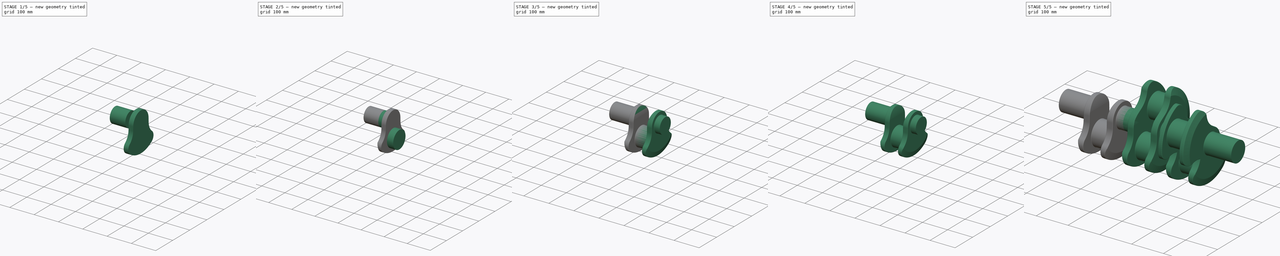
[diagram: build sequence overview — one tinted view per stage of 5, left to right]
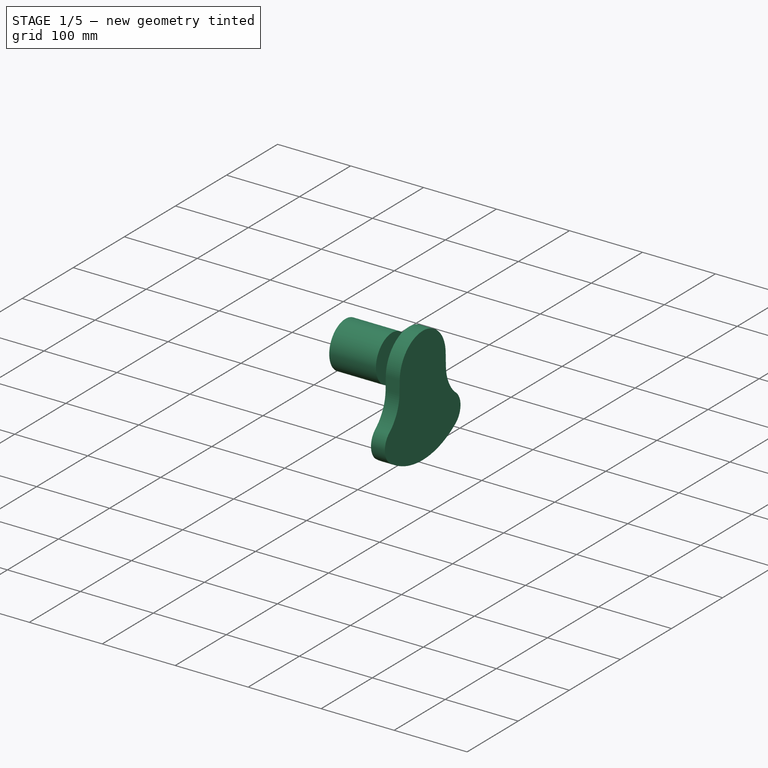
[diagram: stage 1 of 5 — iso view after this stage's code; geometry added in this stage tinted green]
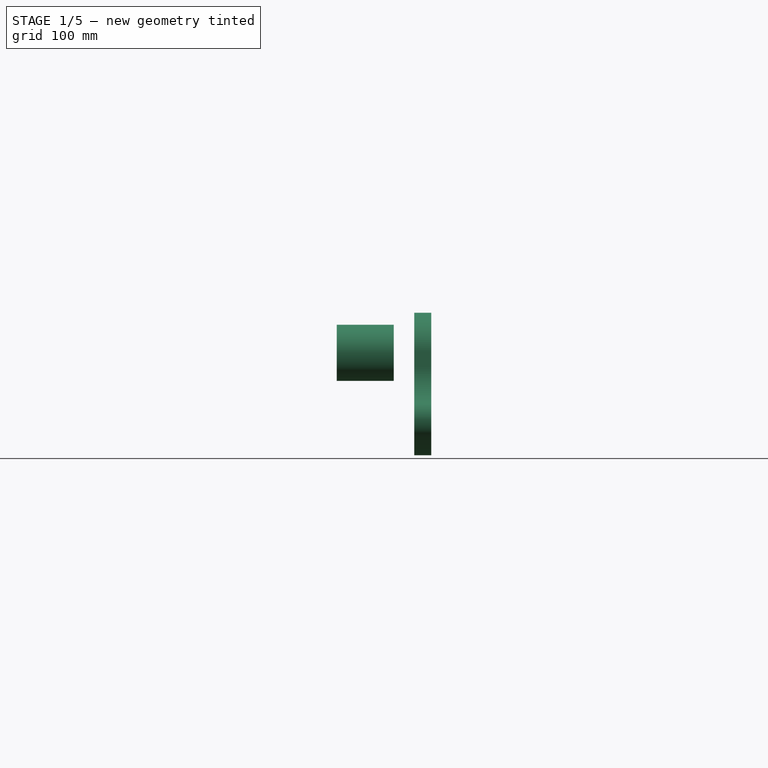
[diagram: stage 1 of 5 — front view after this stage's code; geometry added in this stage tinted green]
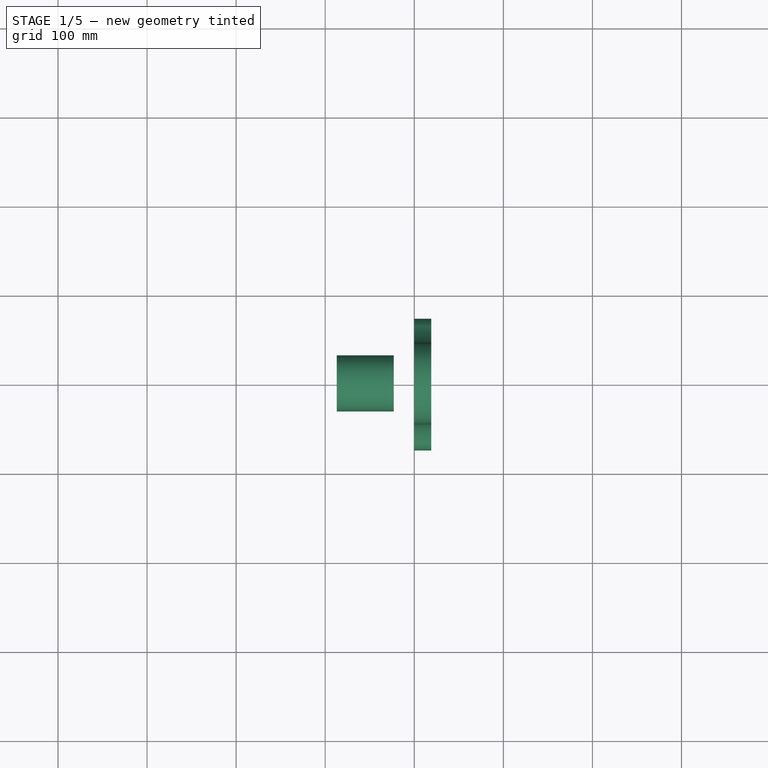
[diagram: stage 1 of 5 — top view after this stage's code; geometry added in this stage tinted green]
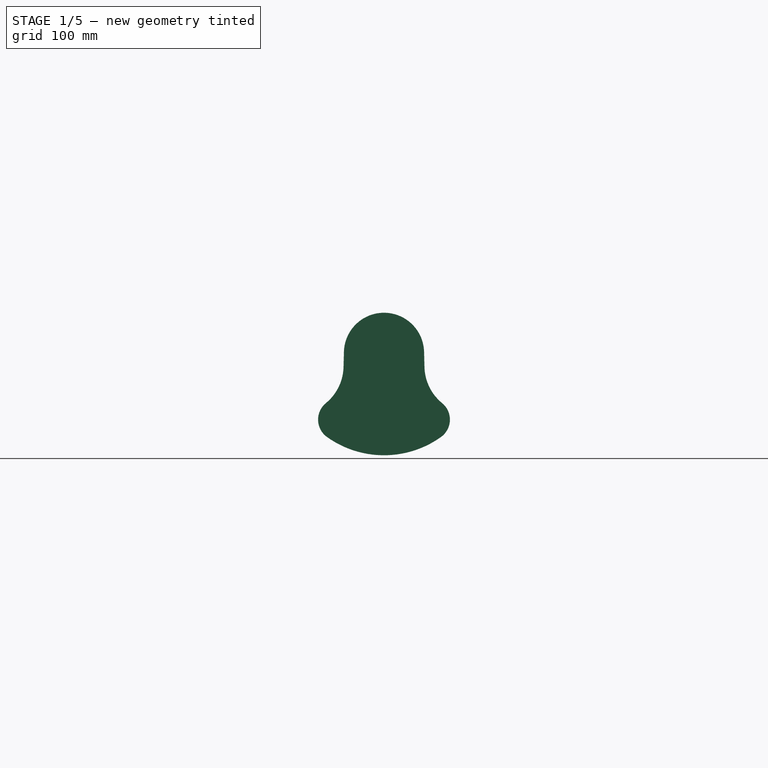
[diagram: stage 1 of 5 — right view after this stage's code; geometry added in this stage tinted green]
FCSTD DOCUMENT  (FreeCAD 0.18.4R)
Label: CrankShaft
License: All rights reserved
LicenseURL: http://en.wikipedia.org/wiki/All_rights_reserved
objects: PartDesign::Body×7, Sketcher::SketchObject×6, PartDesign::FeatureBase×5, PartDesign::Pad×4, PartDesign::Fillet×2, PartDesign::Line×1, PartDesign::Groove×1, PartDesign::Pocket×1, PartDesign::Mirrored×1, Part::FeaturePython×1, Part::MultiFuse×1, App::Part×1
note: 36 computed .brp shape members not serialized (recipe doc carries the construction recipe); baked Part::Feature solids carry a one-line shape summary decoded from their .brp

FEATURE [Sketcher::SketchObject] Sketch
  MapMode = 5
  Placement = pos=(0,0,0) rot=(0.57735,0.57735,0.57735;2.0944rad)
  Support = -> [YZ_Plane001]
  sketch-geometry (9):
    g0: LineSegment StartX=-44.9852 StartY=1.15415 StartZ=0 EndX=-45.4253 EndY=-16 EndZ=0
    g1: LineSegment StartX=44.9852 StartY=1.15415 StartZ=0 EndX=45.4253 EndY=-16 EndZ=0
    g2: ArcOfCircle CenterX=0 CenterY=0 CenterZ=0 NormalX=0 NormalY=0 NormalZ=1 AngleXU=0 Radius=45 StartAngle=0.0256505 EndAngle=3.11594
    g3: ArcOfCircle CenterX=-99.4075 CenterY=-14.615 CenterZ=0 NormalX=0 NormalY=0 NormalZ=1 AngleXU=0 Radius=54 StartAngle=5.39837 EndAngle=6.25753
    g4: ArcOfCircle CenterX=-50 CenterY=-74.9714 CenterZ=0 NormalX=0 NormalY=0 NormalZ=1 AngleXU=0 Radius=24 StartAngle=2.25677 EndAngle=4.09195
    g5: ArcOfCircle CenterX=0 CenterY=-5 CenterZ=0 NormalX=0 NormalY=0 NormalZ=1 AngleXU=0 Radius=110 StartAngle=4.09195 EndAngle=5.33283
    g6: ArcOfCircle CenterX=50 CenterY=-74.9714 CenterZ=0 NormalX=0 NormalY=0 NormalZ=1 AngleXU=0 Radius=24 StartAngle=5.33283 EndAngle=7.168
    g7: ArcOfCircle CenterX=99.4075 CenterY=-14.615 CenterZ=0 NormalX=0 NormalY=0 NormalZ=1 AngleXU=0 Radius=54 StartAngle=3.16724 EndAngle=4.02641
    g8: Circle [constr] CenterX=0 CenterY=-63 CenterZ=0 NormalX=0 NormalY=0 NormalZ=1 AngleXU=0 Radius=38
  constraints (24):
    c: Coincident(g2,g-1)
    c: Tangent(g2,g1) = 1.5708
    c: Tangent(g2,g0) = -1.5708
    c: Symmetric(g0,g1,g-2)
    c: Radius(g2) = 45
    c: PointOnObject(g5,g-2)
    c: Tangent(g7,g1) = -1.5708
    c: Tangent(g7,g6) = 1.5708
    c: Tangent(g6,g5) = -1.5708
    c: Tangent(g5,g4) = -1.5708
    c: Tangent(g4,g3) = 1.5708
    c: Tangent(g3,g0) = 1.5708
    c: Equal(g4,g6)
    c: Equal(g7,g3)
    c: PointOnObject(g8,g-2)
    c: Radius(g8) = 38
    c: DistanceY(g8,g2) = 63
    c: Equal(g1,g0)
    c: DistanceY(g5,g2) = 5
    c: Radius(g5) = 110
    c: Radius(g6) = 24
    c: Radius(g7) = 54
    c: DistanceY(g1,g2) = 16
    c: DistanceX(g4,g6) = 100
FEATURE [PartDesign::Pad] Pad
  Length = 19
  Length2 = 100
  Placement = pos=(0,0,0) rot=(0.57735,0.57735,0.57735;2.0944rad)
  Profile = -> Sketch
  Refine = true
  Type = 0
FEATURE [PartDesign::Body] Body004
  Group = -> [Clone003]
  Origin = -> Origin005
  Placement = pos=(276,0,0) rot=(1,0,0;4.18879rad)
  Tip = -> Clone003
FEATURE [Sketcher::SketchObject] Sketch005
  MapMode = 5
  Placement = pos=(0,0,0) rot=(0.57735,0.57735,0.57735;2.0944rad)
  Support = -> [YZ_Plane006]
  sketch-geometry (1):
    g0: Circle CenterX=0 CenterY=0 CenterZ=0 NormalX=0 NormalY=0 NormalZ=1 AngleXU=0 Radius=31.5
  constraints (2):
    c: Coincident(g0,g-1)
    c: Radius(g0) = 31.5
FEATURE [PartDesign::Pad] Pad003
  Length = 64
  Length2 = 100
  Placement = pos=(0,0,0) rot=(0.57735,0.57735,0.57735;2.0944rad)
  Profile = -> Sketch005
  Refine = true
  Reversed = true
  Type = 0
FEATURE [PartDesign::Body] Body005
  Group = -> [Sketch005,Pad003]
  Origin = -> Origin006
  Placement = pos=(-23,0,0) rot=(0,0,1;0rad)
  Tip = -> Pad003
FEATURE [PartDesign::FeatureBase] Clone004
  BaseFeature = -> Body005
  Placement = pos=(-23,0,0) rot=(0,0,1;0rad)
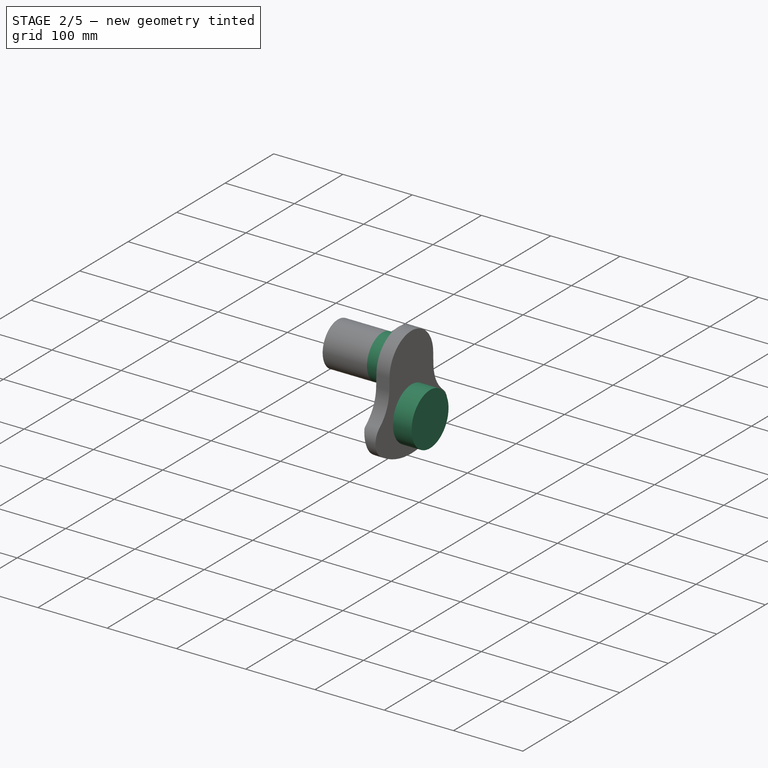
[diagram: stage 2 of 5 — iso view after this stage's code; geometry added in this stage tinted green]
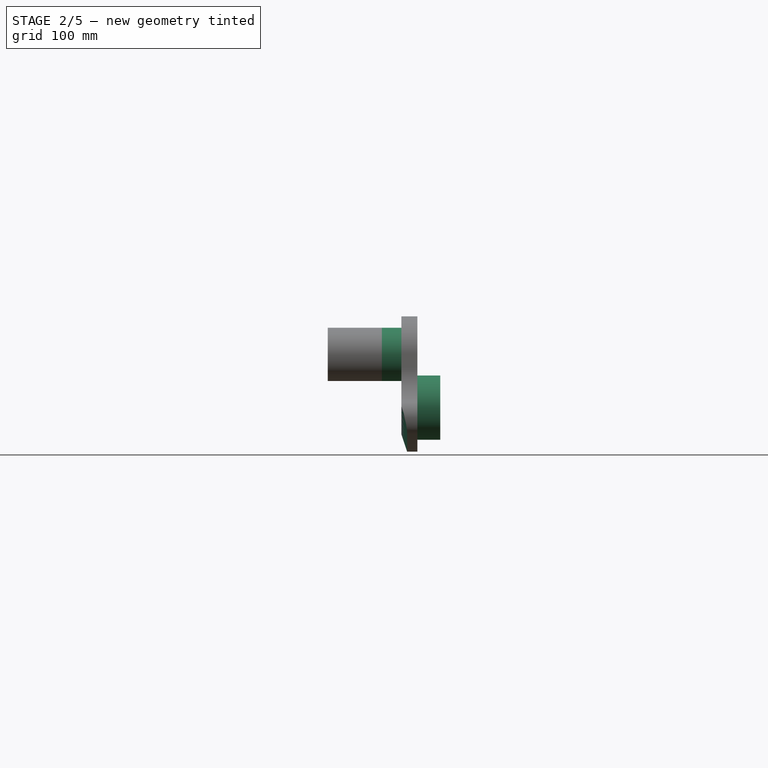
[diagram: stage 2 of 5 — front view after this stage's code; geometry added in this stage tinted green]
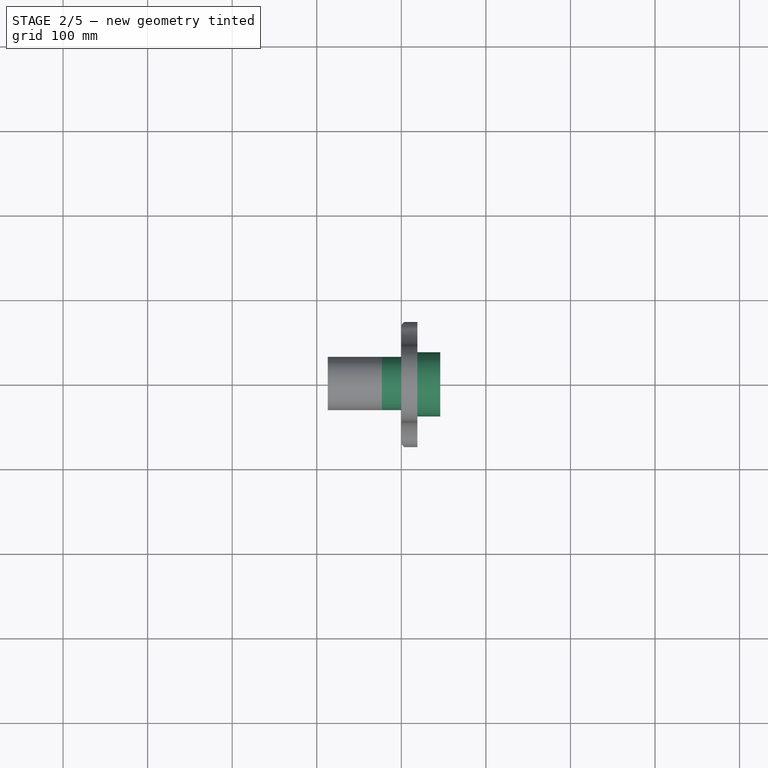
[diagram: stage 2 of 5 — top view after this stage's code; geometry added in this stage tinted green]
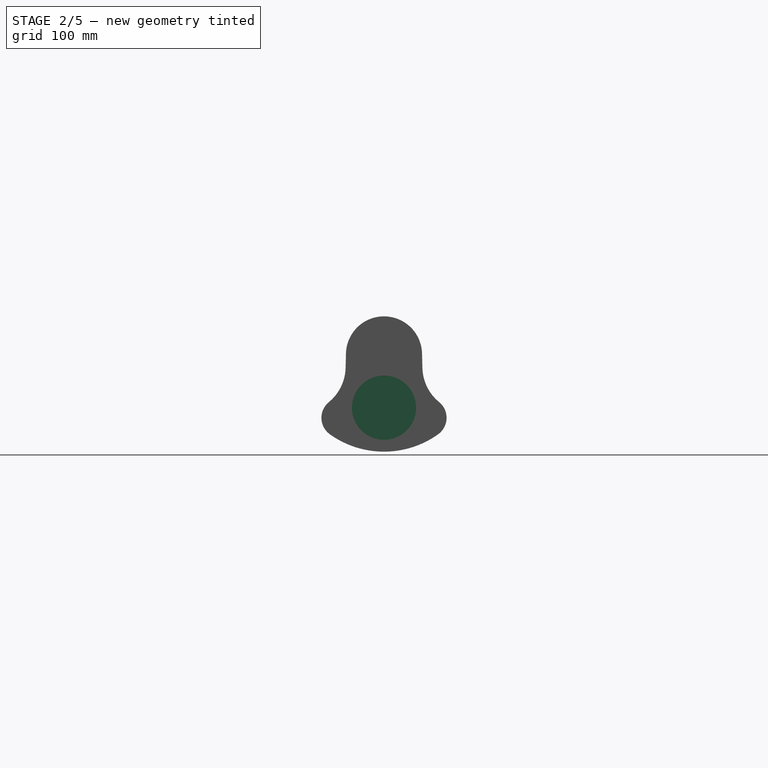
[diagram: stage 2 of 5 — right view after this stage's code; geometry added in this stage tinted green]
FEATURE [Sketcher::SketchObject] Sketch001
  MapMode = 5
  Placement = pos=(1e-16,0,0) rot=(0.57735,0.57735,-0.57735;4.18879rad)
  Support = -> [Pad]
  sketch-geometry (1):
    g0: Circle CenterX=0 CenterY=0 CenterZ=0 NormalX=0 NormalY=0 NormalZ=1 AngleXU=0 Radius=31.5
  constraints (2):
    c: Coincident(g0,g-1)
    c: Radius(g0) = 31.5
FEATURE [PartDesign::Pad] Pad001
  BaseFeature = -> Pad
  Length = 23
  Length2 = 100
  Placement = pos=(0,0,0) rot=(0.57735,0.57735,0.57735;2.0944rad)
  Profile = -> Sketch001
  Refine = true
  Type = 0
FEATURE [Sketcher::SketchObject] Sketch002
  MapMode = 5
  Placement = pos=(19,-4.2e-15,4.2e-15) rot=(0.57735,0.57735,0.57735;2.0944rad)
  Support = -> [Pad001]
  sketch-geometry (1):
    g0: Circle CenterX=0 CenterY=-63 CenterZ=0 NormalX=0 NormalY=0 NormalZ=1 AngleXU=0 Radius=38
  constraints (3):
    c: PointOnObject(g0,g-2)
    c: DistanceY(g0,g-1) = 63
    c: Radius(g0) = 38
FEATURE [PartDesign::Pad] Pad002
  BaseFeature = -> Pad001
  Length = 27
  Length2 = 100
  Placement = pos=(0,0,0) rot=(0.57735,0.57735,0.57735;2.0944rad)
  Profile = -> Sketch002
  Refine = true
  Type = 0
FEATURE [Sketcher::SketchObject] Sketch003
  ExternalGeometry = -> [Pad002]
  MapMode = 5
  Placement = pos=(0,0,0) rot=(1,0,0;1.5708rad)
  Support = -> [XZ_Plane001]
  sketch-geometry (3):
    g0: LineSegment StartX=1.012e-13 StartY=-94.4983 StartZ=0 EndX=8 EndY=-118.498 EndZ=0
    g1: LineSegment StartX=8 StartY=-118.498 StartZ=0 EndX=0 EndY=-118.498 EndZ=0
    g2: LineSegment StartX=0 StartY=-118.498 StartZ=0 EndX=1.012e-13 EndY=-94.4983 EndZ=0
  constraints (8):
    c: Coincident(g0,g-3)
    c: Coincident(g1,g0)
    c: PointOnObject(g1,g-2)
    c: Horizontal(g1)
    c: Coincident(g1,g2)
    c: Coincident(g2,g0)
    c: DistanceY(g2,g2) = 24
    c: DistanceX(g1,g1) = 8
FEATURE [PartDesign::Line] DatumLine001
  AttacherType = Attacher::AttachEngineLine
  MapMode = 19
  Placement = pos=(0,0,-5) rot=(-0.291968,0.910774,-0.291968;1.66412rad)
  Support = -> [Sketch]
FEATURE [PartDesign::Groove] Groove
  Angle = 180
  Axis = (1,-2e-16,4e-16)
  Base = (1.1e-15,2.13e-14,-5)
  BaseFeature = -> Pad002
  Midplane = true
  Placement = pos=(0,0,0) rot=(0.57735,0.57735,0.57735;2.0944rad)
  Profile = -> Sketch003
  ReferenceAxis = -> DatumLine001
  Refine = true
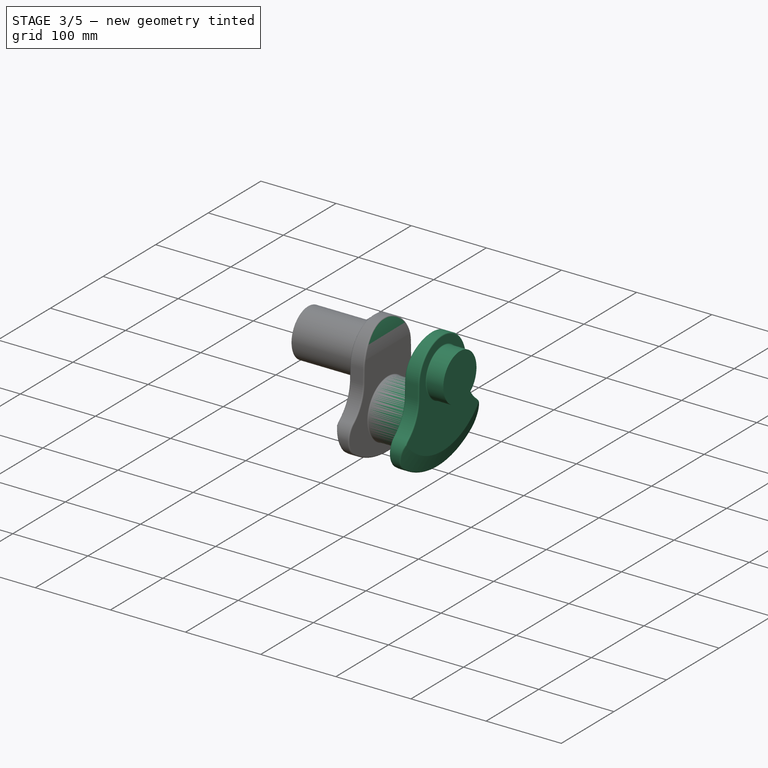
[diagram: stage 3 of 5 — iso view after this stage's code; geometry added in this stage tinted green]
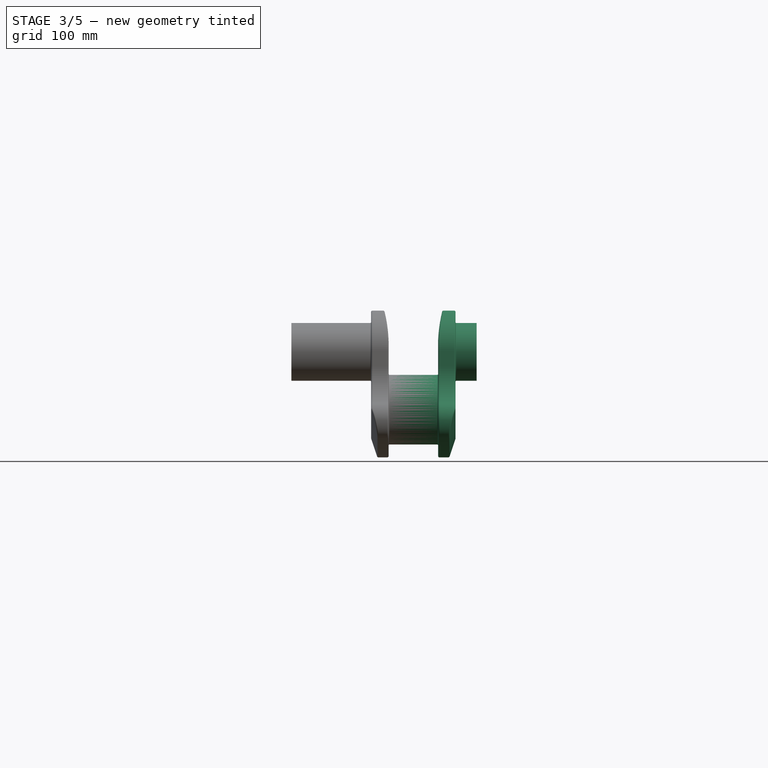
[diagram: stage 3 of 5 — front view after this stage's code; geometry added in this stage tinted green]
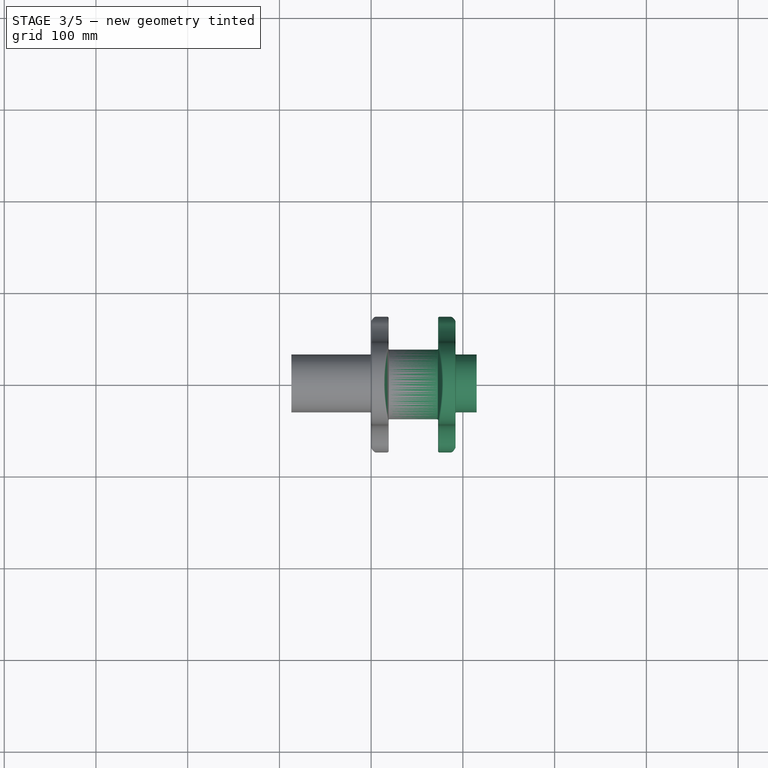
[diagram: stage 3 of 5 — top view after this stage's code; geometry added in this stage tinted green]
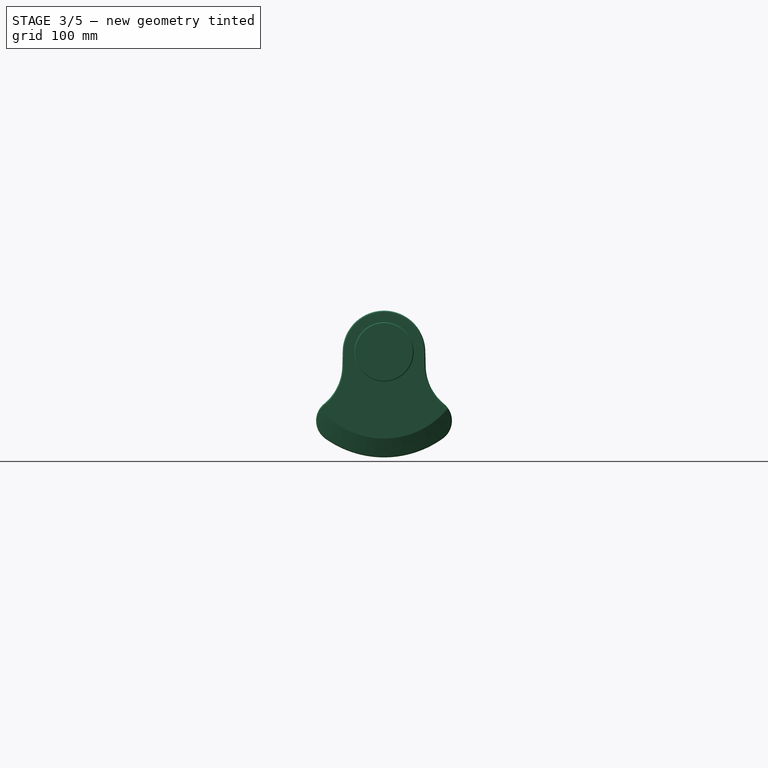
[diagram: stage 3 of 5 — right view after this stage's code; geometry added in this stage tinted green]
FEATURE [Sketcher::SketchObject] Sketch004
  ExternalGeometry = -> [Groove]
  MapMode = 5
  Placement = pos=(0,0,0) rot=(1,0,0;1.5708rad)
  Support = -> [XZ_Plane001]
  sketch-geometry (4):
    g0: LineSegment StartX=14 StartY=46.1541 StartZ=0 EndX=19 EndY=46.1541 EndZ=0
    g1: LineSegment StartX=19 StartY=46.1541 StartZ=0 EndX=19 EndY=1.15415 EndZ=0
    g2: LineSegment [constr] StartX=19 StartY=1.15415 StartZ=0 EndX=14 EndY=46.1541 EndZ=0
    g3: ArcOfCircle CenterX=-140.922 CenterY=6.16286 CenterZ=0 NormalX=0 NormalY=0 NormalZ=1 AngleXU=0 Radius=160 StartAngle=6.25188 EndAngle=6.53581
  constraints (11):
    c: Horizontal(g0)
    c: Coincident(g0,g1)
    c: Coincident(g1,g-3)
    c: Vertical(g1)
    c: Coincident(g1,g2)
    c: Coincident(g2,g0)
    c: Coincident(g3,g0)
    c: Coincident(g3,g1)
    c: Radius(g3) = 160
    c: DistanceY(g1,g1) = 45
    c: DistanceX(g0,g0) = 5
FEATURE [PartDesign::Pocket] Pocket
  BaseFeature = -> Groove
  Length = 5
  Length2 = 100
  Midplane = true
  Placement = pos=(0,0,0) rot=(0.57735,0.57735,0.57735;2.0944rad)
  Profile = -> Sketch004
  Refine = true
  Type = 1
FEATURE [PartDesign::Mirrored] Mirrored
  BaseFeature = -> Pocket
  MirrorPlane = -> Pocket [Face16]
  Originals = -> [Pad002,Pad,Pad001,Groove,Pocket]
  Placement = pos=(0,0,0) rot=(0.57735,0.57735,0.57735;2.0944rad)
  Refine = true
FEATURE [PartDesign::Fillet] Fillet
  Base = -> Mirrored [Edge27,Edge6,Edge59,Edge49,Edge24,Edge58,Edge66]
  BaseFeature = -> Mirrored
  Placement = pos=(0,0,0) rot=(0.57735,0.57735,0.57735;2.0944rad)
  Radius = 1.5
FEATURE [PartDesign::Fillet] Fillet001
  Base = -> Fillet [Edge106,Edge151,Edge11,Edge33]
  BaseFeature = -> Fillet
  Placement = pos=(0,0,0) rot=(0.57735,0.57735,0.57735;2.0944rad)
  Radius = 1
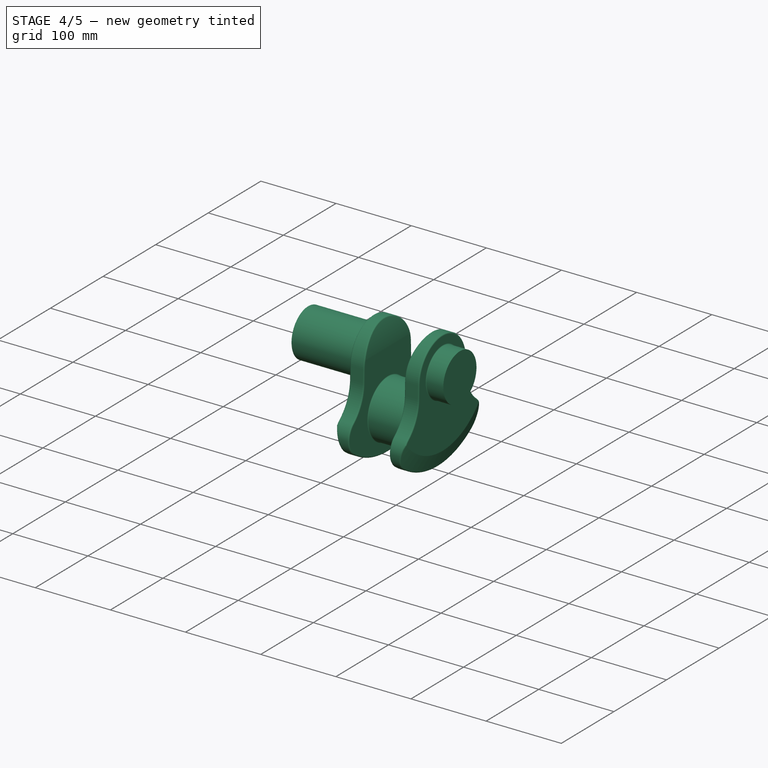
[diagram: stage 4 of 5 — iso view after this stage's code; geometry added in this stage tinted green]
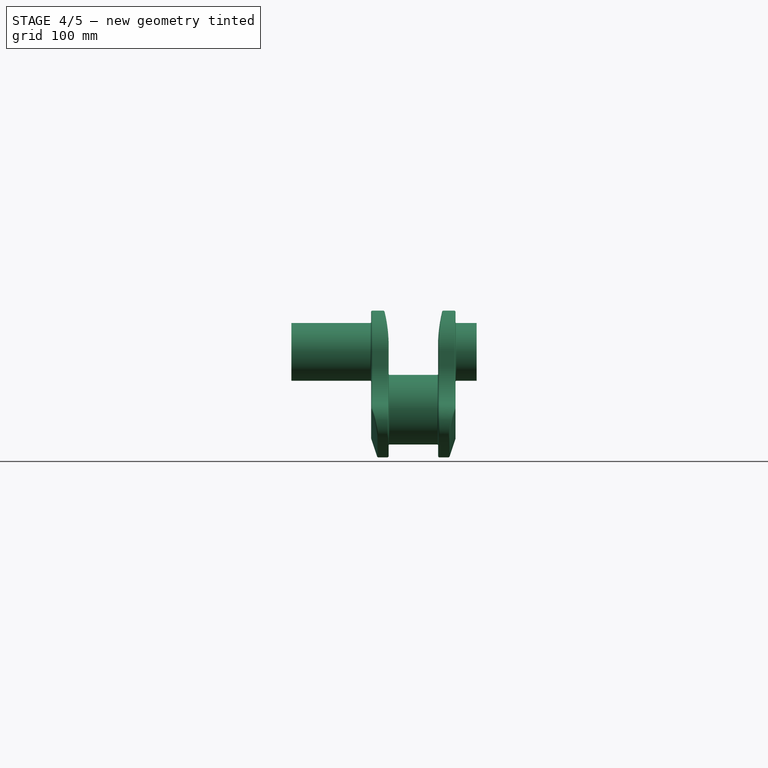
[diagram: stage 4 of 5 — front view after this stage's code; geometry added in this stage tinted green]
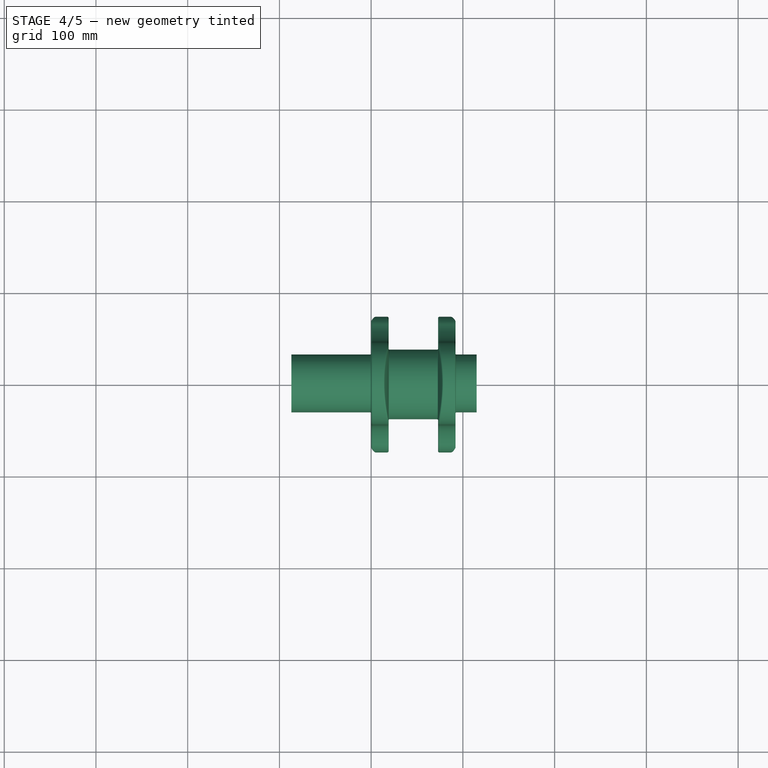
[diagram: stage 4 of 5 — top view after this stage's code; geometry added in this stage tinted green]
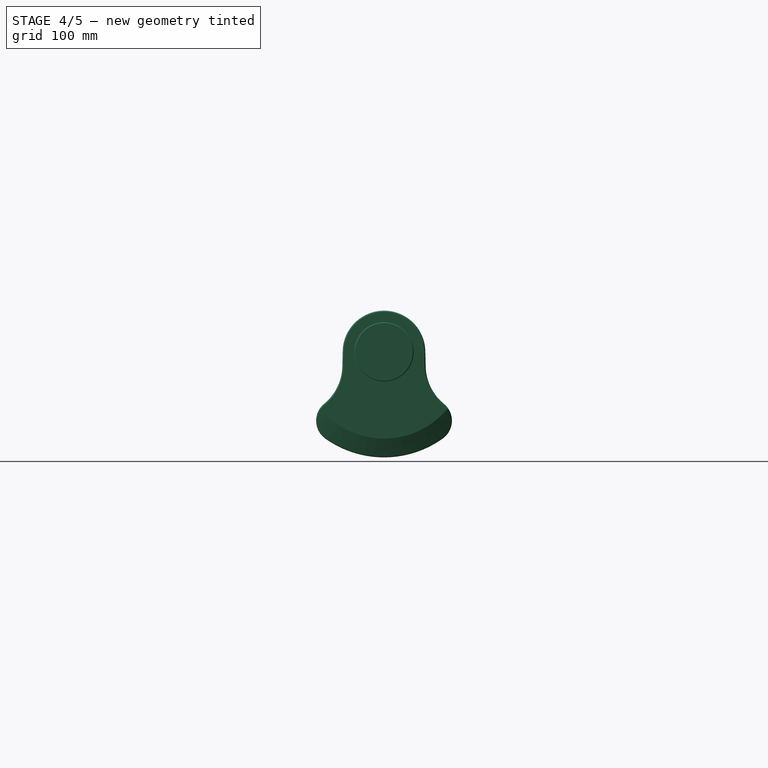
[diagram: stage 4 of 5 — right view after this stage's code; geometry added in this stage tinted green]
FEATURE [PartDesign::FeatureBase] Clone001
  BaseFeature = -> Body
FEATURE [PartDesign::Body] Body002
  Group = -> [Clone001]
  Origin = -> Origin003
  Tip = -> Clone001
FEATURE [PartDesign::FeatureBase] Clone002
  BaseFeature = -> Body
FEATURE [PartDesign::Body] Body003
  Group = -> [Clone002]
  Origin = -> Origin004
  Placement = pos=(138,0,0) rot=(1,0,0;2.0944rad)
  Tip = -> Clone002
FEATURE [PartDesign::FeatureBase] Clone003
  BaseFeature = -> Body
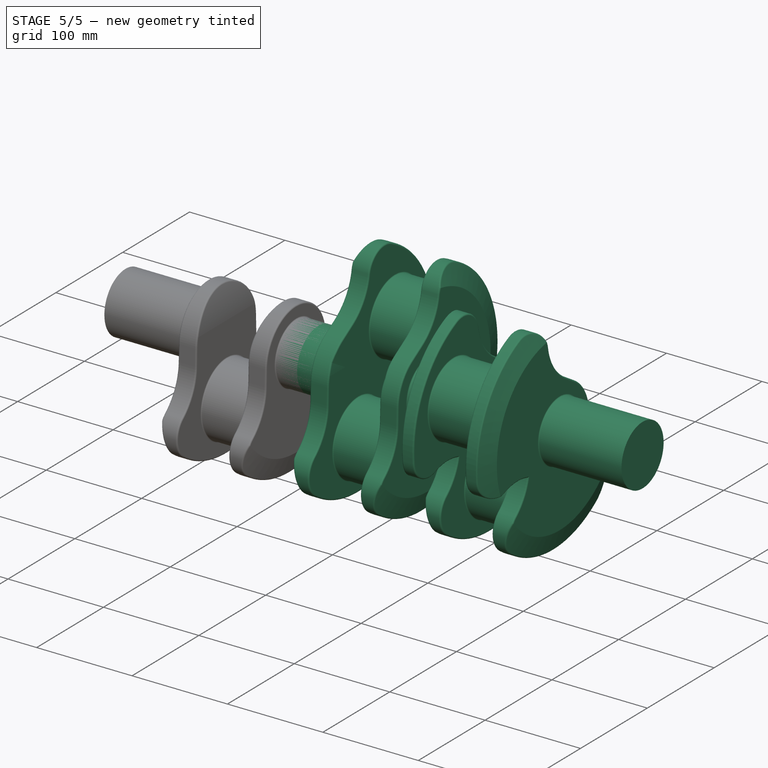
[diagram: stage 5 of 5 — iso view after this stage's code; geometry added in this stage tinted green]
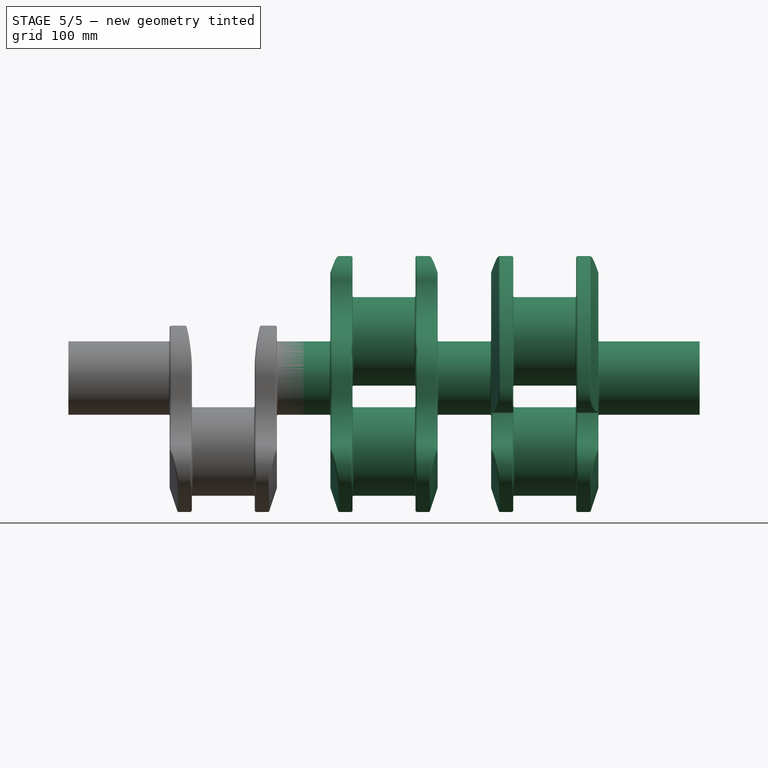
[diagram: stage 5 of 5 — front view after this stage's code; geometry added in this stage tinted green]
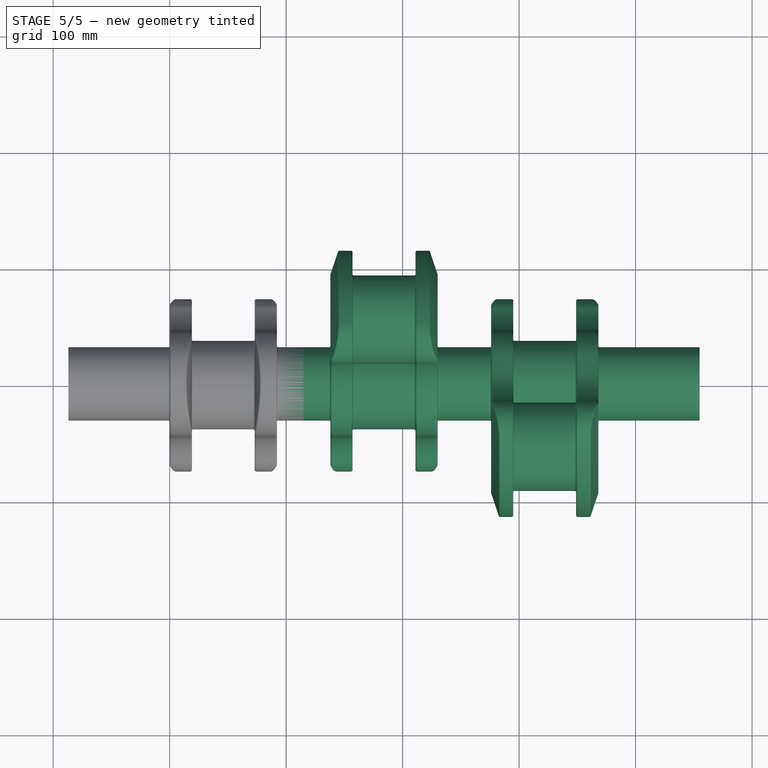
[diagram: stage 5 of 5 — top view after this stage's code; geometry added in this stage tinted green]
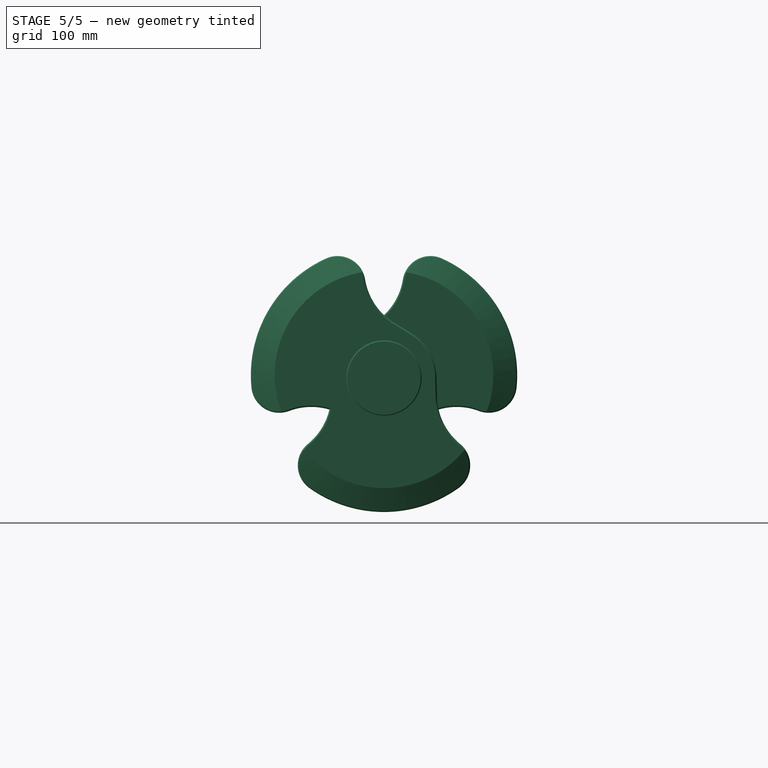
[diagram: stage 5 of 5 — right view after this stage's code; geometry added in this stage tinted green]
FEATURE [PartDesign::Body] Body
  Group = -> [Sketch,Pad,Sketch001,Pad001,Sketch002,Pad002,Sketch003,DatumLine001,Groove,Sketch004,Pocket,Mirrored,Fillet,Fillet001]
  Origin = -> Origin001
  Tip = -> Fillet001
FEATURE [PartDesign::FeatureBase] Clone
  BaseFeature = -> Body
FEATURE [PartDesign::Body] Body001
  BaseFeature = -> Body
  Group = -> [Clone]
  Origin = -> Origin002
  Tip = -> Clone
FEATURE [Part::FeaturePython] Array  # Draft array (typed FeaturePython)
  Angle = 360
  ArrayType = 0
  Axis = (1,0,0)
  Base = -> Body001
  Center = (0,0,0)
  Fuse = false
  IntervalAxis = (0,0,0)
  IntervalX = (138,0,0)
  IntervalY = (0,1,0)
  IntervalZ = (0,0,1)
  NumberPolar = 1
  NumberX = 3
  NumberY = 1
  NumberZ = 1
FEATURE [PartDesign::Body] Body006
  Group = -> [Clone004]
  Origin = -> Origin007
  Placement = pos=(478,0,0) rot=(0,0,1;0rad)
  Tip = -> Clone004
FEATURE [Part::MultiFuse] Fusion
  Refine = true
  Shapes = -> [Body002,Body005,Body003,Body004,Body006]
FEATURE [App::Part] Part  label="Crank Shaft"
  Group = -> [Body,Body001,Array,Body002,Body003,Body004,Body005,Body006,Fusion]
  Origin = -> Origin
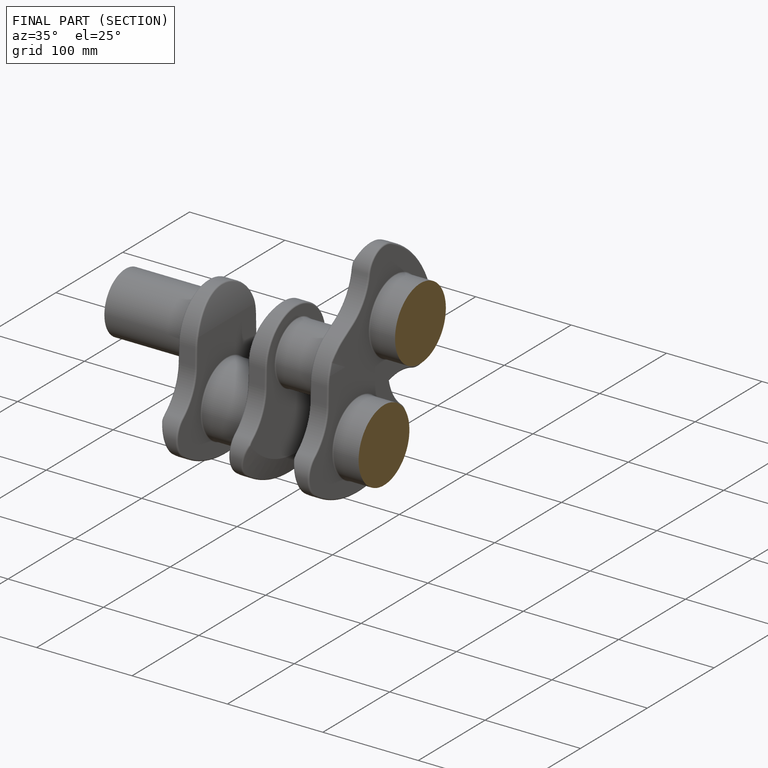
[diagram: finished part — half-section view (interior)]
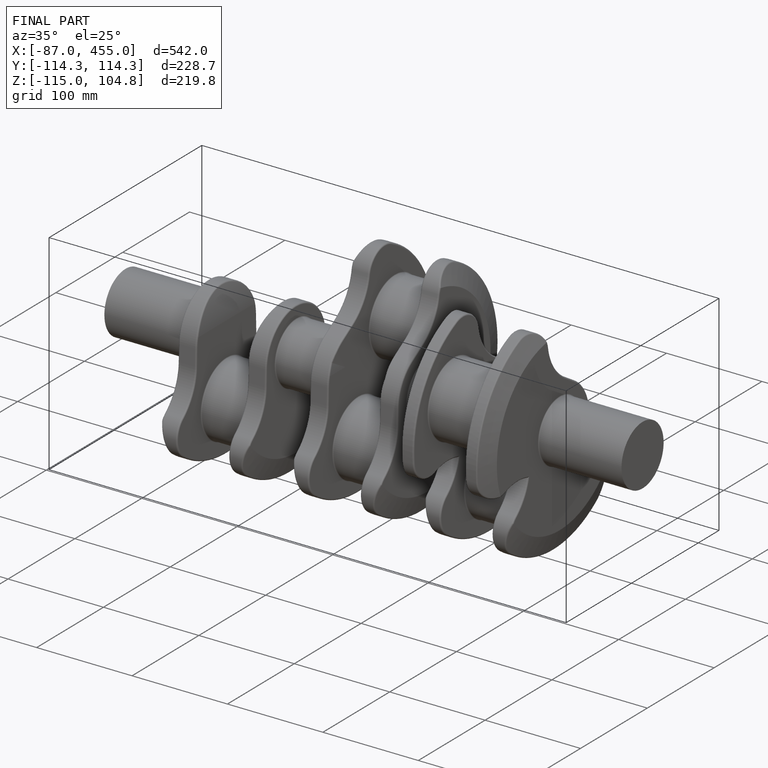
[diagram: finished part — iso view with bounding-box wireframe]
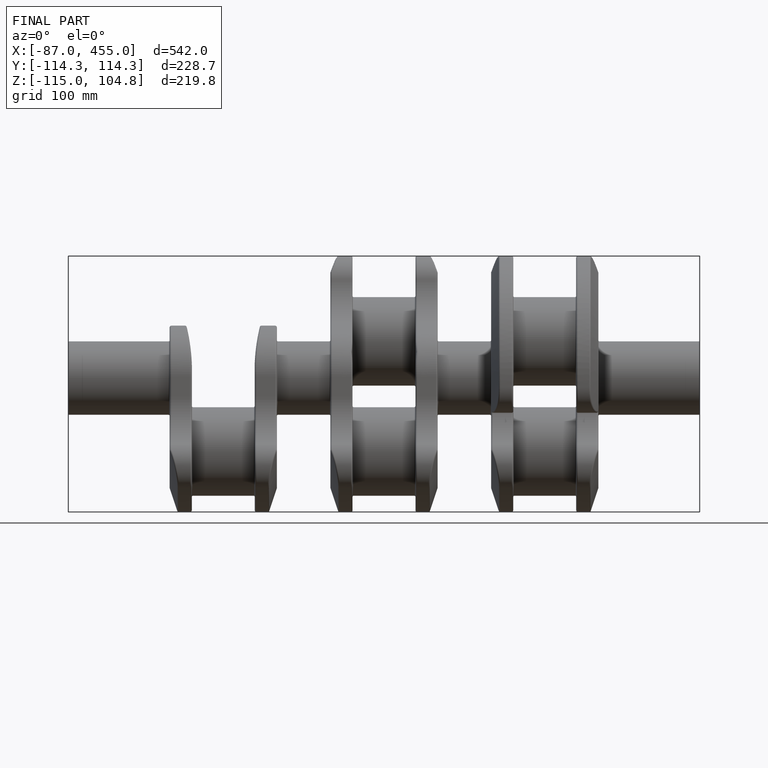
[diagram: finished part — front view with bounding-box wireframe]
